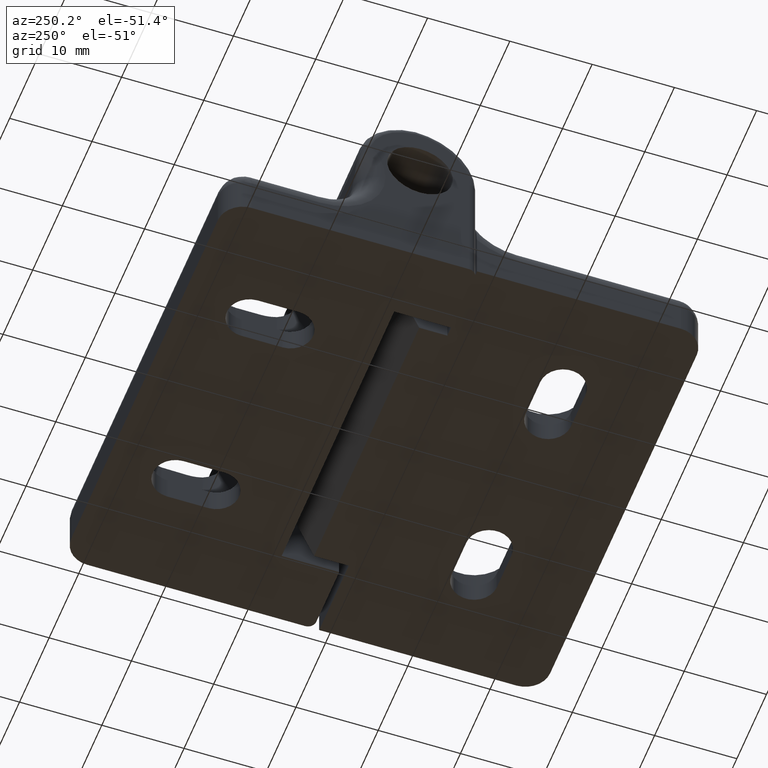
[diagram: clean part render]
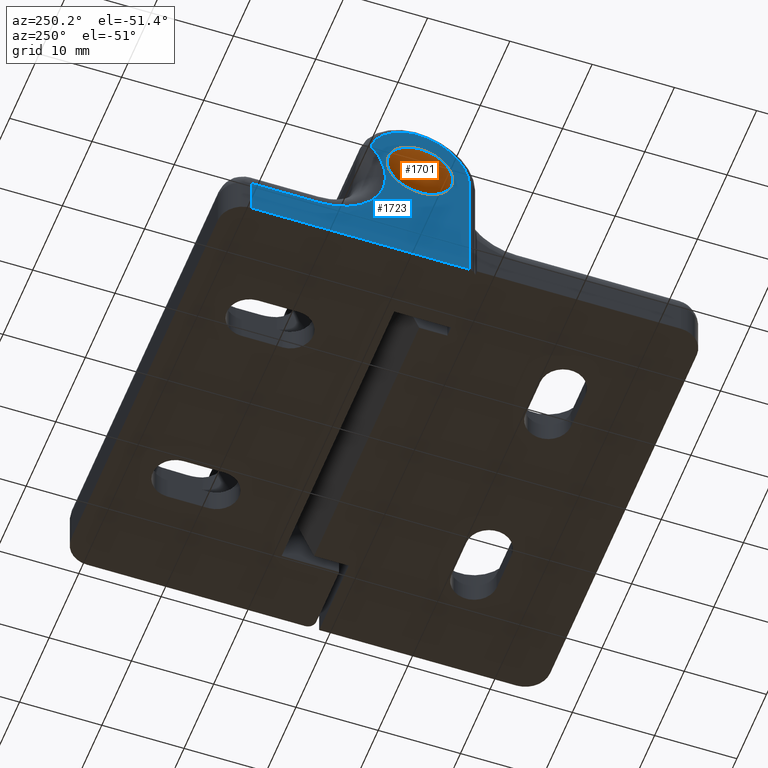
[diagram: same view with the hole feature highlighted: cylindrical wall and planar end face, labeled with their STEP entity ids]
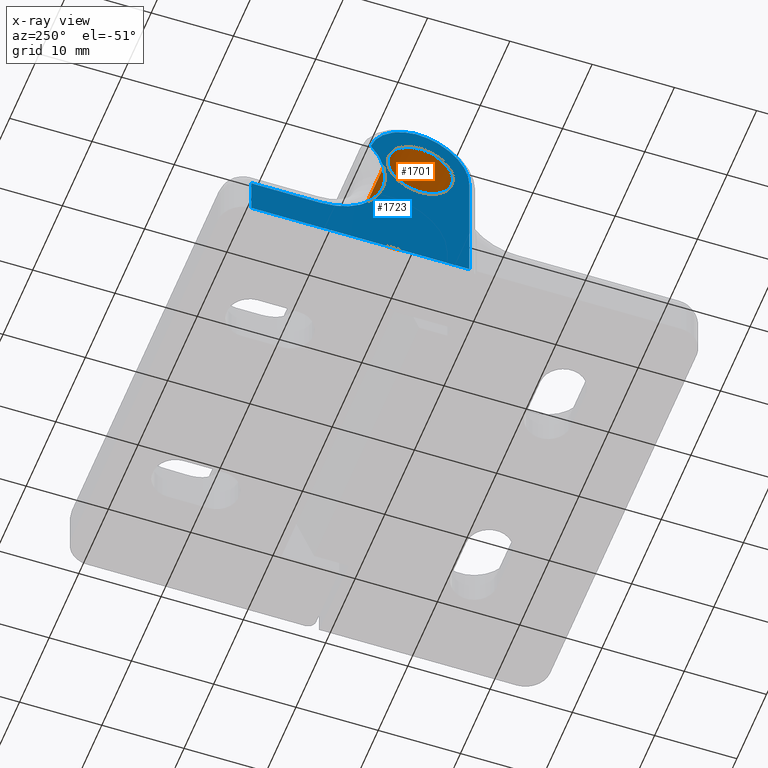
[diagram: x-ray of the same camera — body ghosted, the hole faces saturated]
A machine part, auxiliary view. The highlighted faces form one hole feature of diameter 8 mm: the cylindrical wall (entity #1701, orange) and its adjacent planar end face (entity #1723, blue) — they share a circular edge in the B-rep.
The next image is the same camera in x-ray (body ghosted, the hole faces saturated) — the bore reads through the body.
Wall:
#106=FACE_BOUND('',#230,.T.);
#128=FACE_OUTER_BOUND('',#229,.T.);
#229=EDGE_LOOP('',(#1157));
#230=EDGE_LOOP('',(#1158));
#636=CIRCLE('',#1812,4.);
#637=CIRCLE('',#1813,4.);
#737=VERTEX_POINT('',#2575);
#738=VERTEX_POINT('',#2577);
#901=EDGE_CURVE('',#737,#737,#636,.T.);
#902=EDGE_CURVE('',#738,#738,#637,.T.);
#1157=ORIENTED_EDGE('',*,*,#901,.F.);
#1158=ORIENTED_EDGE('',*,*,#902,.T.);
#1660=CYLINDRICAL_SURFACE('',#1811,4.);
#1701=ADVANCED_FACE('',(#128,#106),#1660,.F.);
#1811=AXIS2_PLACEMENT_3D('',#2574,#2028,#2029);
#1812=AXIS2_PLACEMENT_3D('',#2576,#2030,#2031);
#1813=AXIS2_PLACEMENT_3D('',#2578,#2032,#2033);
#2028=DIRECTION('center_axis',(1.,0.,0.));
#2029=DIRECTION('ref_axis',(0.,-1.,0.));
#2030=DIRECTION('center_axis',(1.,0.,0.));
#2031=DIRECTION('ref_axis',(0.,0.,1.));
#2032=DIRECTION('center_axis',(1.,0.,0.));
#2033=DIRECTION('ref_axis',(0.,0.,1.));
#2574=CARTESIAN_POINT('Origin',(-17.75000001,21.9677756572818,15.9977729309299));
#2575=CARTESIAN_POINT('',(-17.75,21.9677756572818,19.9977729309299));
#2576=CARTESIAN_POINT('Origin',(-17.75,21.9677756572818,15.9977729309299));
#2577=CARTESIAN_POINT('',(-9.,21.9677756572818,19.9977729309299));
#2578=CARTESIAN_POINT('Origin',(-9.,21.9677756572818,15.9977729309299));
End face:
#56=PLANE('',#1866);
#110=FACE_BOUND('',#256,.T.);
#150=FACE_OUTER_BOUND('',#255,.T.);
#255=EDGE_LOOP('',(#1279,#1280,#1281,#1282,#1283,#1284,#1285));
#256=EDGE_LOOP('',(#1286));
#399=LINE('',#2791,#541);
#404=LINE('',#2808,#546);
#405=LINE('',#2816,#547);
#406=LINE('',#2817,#548);
#541=VECTOR('',#2177,26.5);
#546=VECTOR('',#2192,15.5);
#547=VECTOR('',#2199,8.29999999999999);
#548=VECTOR('',#2200,4.5);
#636=CIRCLE('',#1812,4.);
#667=CIRCLE('',#1867,6.5);
#668=CIRCLE('',#1868,6.1);
#669=CIRCLE('',#1869,8.);
#737=VERTEX_POINT('',#2575);
#797=VERTEX_POINT('',#2788);
#798=VERTEX_POINT('',#2790);
#805=VERTEX_POINT('',#2807);
#806=VERTEX_POINT('',#2809);
#807=VERTEX_POINT('',#2811);
#808=VERTEX_POINT('',#2813);
#809=VERTEX_POINT('',#2815);
#901=EDGE_CURVE('',#737,#737,#636,.T.);
#985=EDGE_CURVE('',#798,#797,#399,.T.);
#994=EDGE_CURVE('',#797,#805,#404,.T.);
#995=EDGE_CURVE('',#805,#806,#667,.T.);
#996=EDGE_CURVE('',#806,#807,#668,.T.);
#997=EDGE_CURVE('',#807,#808,#669,.T.);
#998=EDGE_CURVE('',#808,#809,#405,.T.);
#999=EDGE_CURVE('',#809,#798,#406,.T.);
#1279=ORIENTED_EDGE('',*,*,#985,.T.);
#1280=ORIENTED_EDGE('',*,*,#994,.T.);
#1281=ORIENTED_EDGE('',*,*,#995,.T.);
#1282=ORIENTED_EDGE('',*,*,#996,.T.);
#1283=ORIENTED_EDGE('',*,*,#997,.T.);
#1284=ORIENTED_EDGE('',*,*,#998,.T.);
#1285=ORIENTED_EDGE('',*,*,#999,.T.);
#1286=ORIENTED_EDGE('',*,*,#901,.T.);
#1723=ADVANCED_FACE('',(#150,#110),#56,.F.);
#1812=AXIS2_PLACEMENT_3D('',#2576,#2030,#2031);
#1866=AXIS2_PLACEMENT_3D('',#2806,#2190,#2191);
#1867=AXIS2_PLACEMENT_3D('',#2810,#2193,#2194);
#1868=AXIS2_PLACEMENT_3D('',#2812,#2195,#2196);
#1869=AXIS2_PLACEMENT_3D('',#2814,#2197,#2198);
#2030=DIRECTION('center_axis',(1.,0.,0.));
#2031=DIRECTION('ref_axis',(0.,0.,1.));
#2177=DIRECTION('',(0.,-1.,0.));
#2190=DIRECTION('center_axis',(1.,0.,0.));
#2191=DIRECTION('ref_axis',(0.,0.,-1.));
#2192=DIRECTION('',(0.,0.,1.));
#2193=DIRECTION('center_axis',(-1.,0.,0.));
#2194=DIRECTION('ref_axis',(0.,0.,-1.));
#2195=DIRECTION('center_axis',(-1.,0.,0.));
#2196=DIRECTION('ref_axis',(0.,0.,-1.));
#2197=DIRECTION('center_axis',(1.,0.,0.));
#2198=DIRECTION('ref_axis',(0.,0.,-1.));
#2199=DIRECTION('',(0.,1.,0.));
#2200=DIRECTION('',(0.,0.,-1.));
#2575=CARTESIAN_POINT('',(-17.75,21.9677756572818,19.9977729309299));
#2576=CARTESIAN_POINT('Origin',(-17.75,21.9677756572818,15.9977729309299));
#2788=CARTESIAN_POINT('',(-17.75,15.9677756572818,0.497772930929919));
#2790=CARTESIAN_POINT('',(-17.75,42.4677756572818,0.497772930929919));
#2791=CARTESIAN_POINT('',(-17.75,42.4677756572818,0.497772930929919));
#2806=CARTESIAN_POINT('Origin',(-17.75,14.6427756572818,23.5977084510012));
#2807=CARTESIAN_POINT('',(-17.7500000007645,15.9677756572818,15.9977729309299));
#2808=CARTESIAN_POINT('',(-17.75,15.9677756572818,0.497772930929919));
#2809=CARTESIAN_POINT('',(-17.7500000005586,22.4395211150545,22.497711521474));
#2810=CARTESIAN_POINT('Origin',(-17.75,22.4677756572818,15.9977729309299));
#2811=CARTESIAN_POINT('',(-17.75,27.9485298067387,18.0297686632912));
#2812=CARTESIAN_POINT('Origin',(-17.75,22.0677756572819,16.409049491551));
#2813=CARTESIAN_POINT('',(-17.75,34.1677756572818,4.99777293092991));
#2814=CARTESIAN_POINT('Origin',(-17.75,34.1677756572818,12.9977729309299));
#2815=CARTESIAN_POINT('',(-17.75,42.4677756572818,4.99777293092992));
#2816=CARTESIAN_POINT('',(-17.75,34.1677756572818,4.99777293092992));
#2817=CARTESIAN_POINT('',(-17.75,42.4677756572818,4.99777293092992));